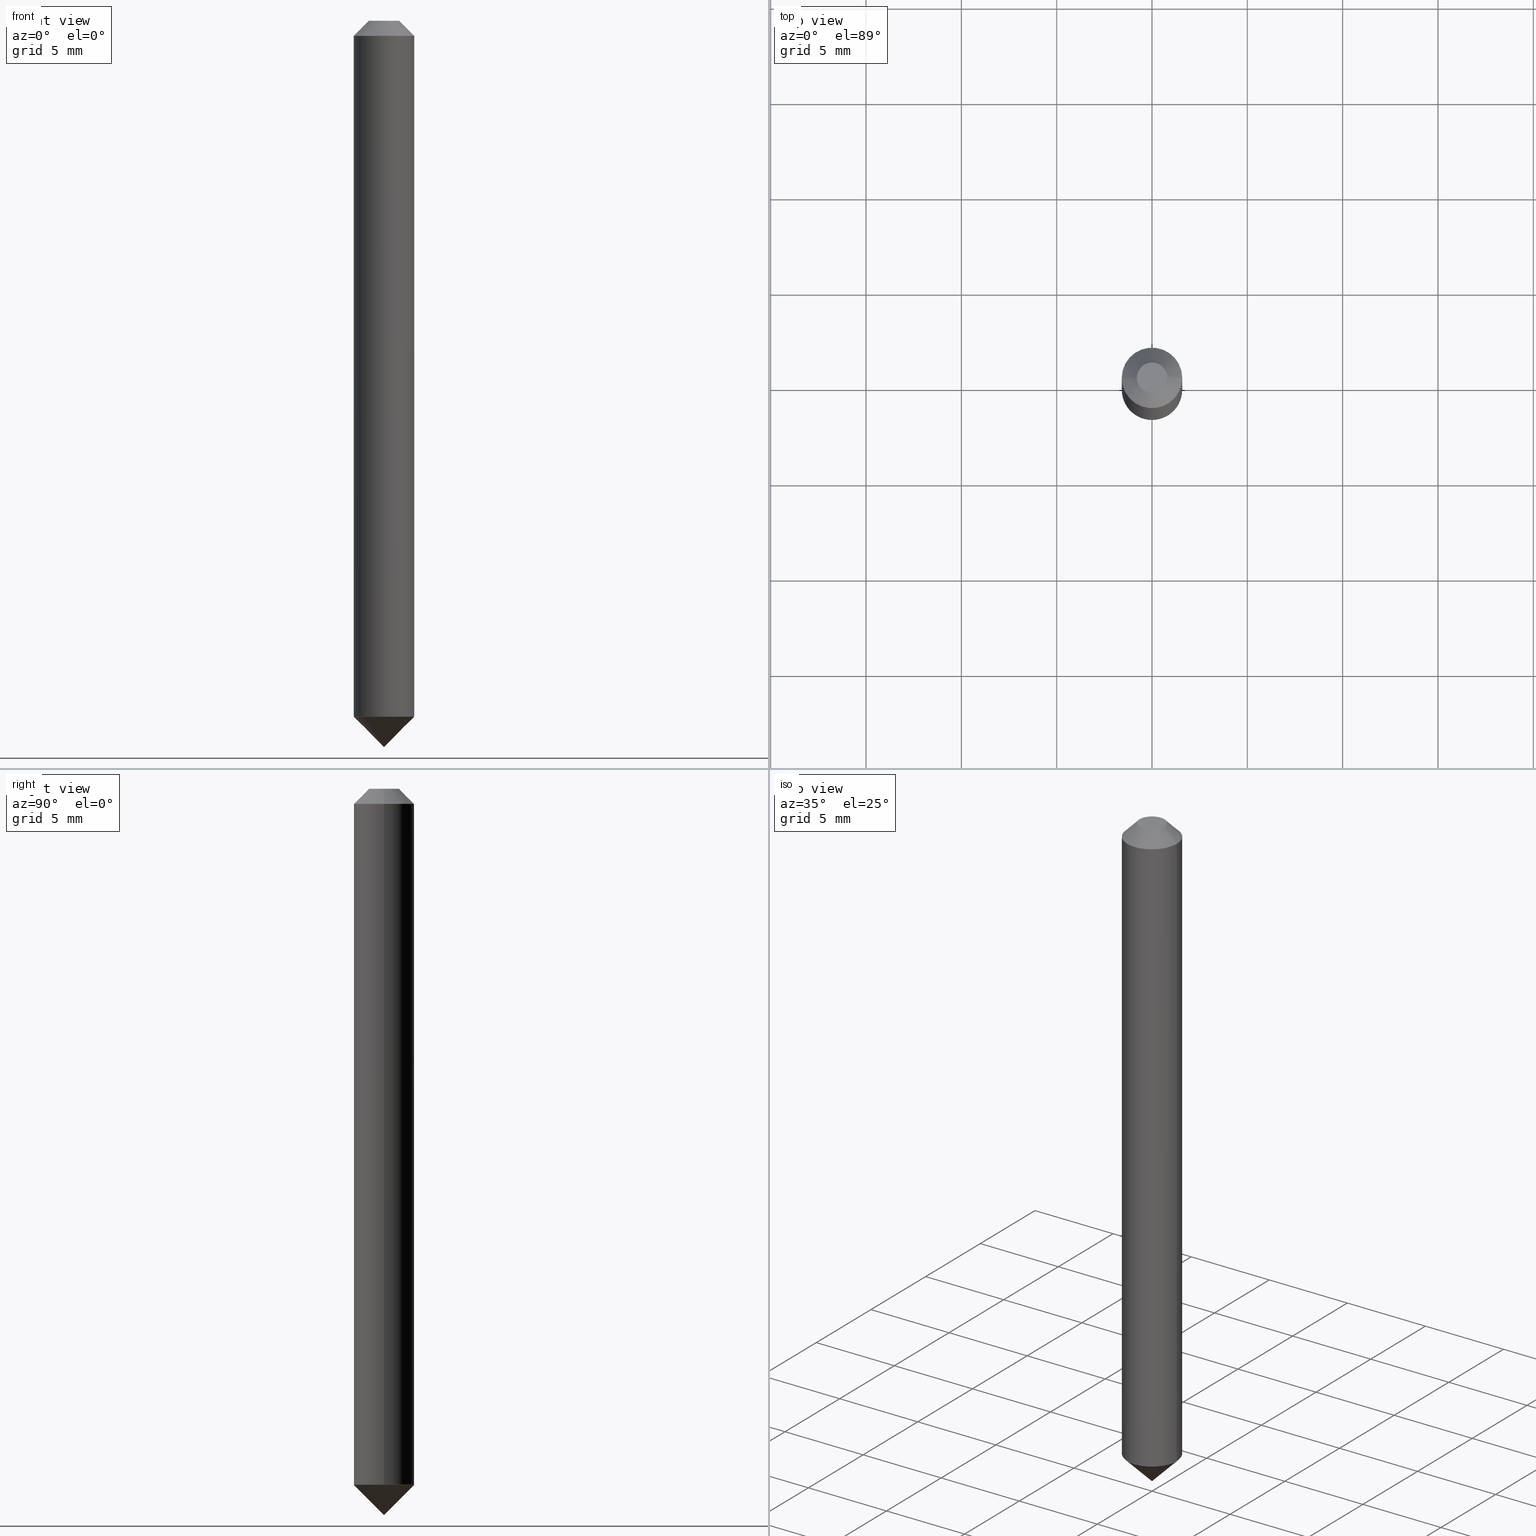
[diagram: canonical four-view strip — front | top / right | iso, engineering-drawing reading convention]
A machine part, canonical four-view strip (front | top / right | iso — engineering-drawing reading convention). The complete STEP part file that produces these views, byte-faithful:
ISO-10303-21;
HEADER;
FILE_DESCRIPTION (( 'STEP AP203' ),
    '1' );
FILE_NAME ('74201.STEP',
    '2024-03-04T15:01:00',
    ( '' ),
    ( '' ),
    'SwSTEP 2.0',
    'SolidWorks 2023',
    '' );
FILE_SCHEMA (( 'CONFIG_CONTROL_DESIGN' ));
ENDSEC;

DATA;
#1 = FACE_OUTER_BOUND ( 'NONE', #127, .T. ) ;
#2 = CARTESIAN_POINT ( 'NONE',  ( 0.06250000000000001388, -5.377153426326275743E-16, -0.03120000000000019286 ) ) ;
#3 = VECTOR ( 'NONE', #85, 39.37007874015748143 ) ;
#4 = DIRECTION ( 'NONE',  ( -6.982962677686266711E-15, -1.000000000000000000, 0.000000000000000000 ) ) ;
#5 = LINE ( 'NONE', #306, #32 ) ;
#6 = FACE_OUTER_BOUND ( 'NONE', #270, .T. ) ;
#7 = ADVANCED_FACE ( 'NONE', ( #224 ), #62, .T. ) ;
#8 = ORIENTED_EDGE ( 'NONE', *, *, #336, .T. ) ;
#9 = DIRECTION ( 'NONE',  ( 1.000000000000000000, -6.982962677686266711E-15, 4.876176775795935793E-29 ) ) ;
#10 = ORIENTED_EDGE ( 'NONE', *, *, #82, .T. ) ;
#11 = PERSON_AND_ORGANIZATION ( #44, #268 ) ;
#12 = VECTOR ( 'NONE', #34, 39.37007874015748143 ) ;
#13 = CONICAL_SURFACE ( 'NONE', #329, 0.06200000000000018691, 0.7853981633973118326 ) ;
#14 = VERTEX_POINT ( 'NONE', #349 ) ;
#15 = VERTEX_POINT ( 'NONE', #323 ) ;
#16 =( NAMED_UNIT ( * ) SI_UNIT ( $, .STERADIAN. ) SOLID_ANGLE_UNIT ( ) );
#17 = EDGE_CURVE ( 'NONE', #301, #253, #116, .T. ) ;
#18 = APPROVAL ( #126, 'UNSPECIFIED' ) ;
#19 = DIRECTION ( 'NONE',  ( 2.438088387897960049E-29, -3.491481338843145188E-15, -1.000000000000000000 ) ) ;
#20 = CC_DESIGN_PERSON_AND_ORGANIZATION_ASSIGNMENT ( #388, #385, ( #243 ) ) ;
#21 = ORIENTED_EDGE ( 'NONE', *, *, #315, .T. ) ;
#22 = AXIS2_PLACEMENT_3D ( 'NONE', #162, #361, #372 ) ;
#23 = CARTESIAN_POINT ( 'NONE',  ( -4.253508758618010942E-16, -0.06200000000000520373, -1.436999999999999833 ) ) ;
#24 = ORIENTED_EDGE ( 'NONE', *, *, #153, .T. ) ;
#25 = DIRECTION ( 'NONE',  ( -1.000000000000000000, 6.982962677686265922E-15, -4.876176775795935793E-29 ) ) ;
#26 = APPLICATION_CONTEXT ( 'configuration controlled 3d designs of mechanical parts and assemblies' ) ;
#27 = CC_DESIGN_PERSON_AND_ORGANIZATION_ASSIGNMENT ( #138, #257, ( #125 ) ) ;
#28 = CIRCLE ( 'NONE', #168, 0.06200000000000031875 ) ;
#29 = CC_DESIGN_SECURITY_CLASSIFICATION ( #243, ( #227 ) ) ;
#30 = COORDINATED_UNIVERSAL_TIME_OFFSET ( 5, 0, .BEHIND. ) ;
#31 = ORIENTED_EDGE ( 'NONE', *, *, #145, .F. ) ;
#32 = VECTOR ( 'NONE', #248, 39.37007874015748143 ) ;
#33 = DIRECTION ( 'NONE',  ( -2.445468806185136597E-29, 3.491481338843145583E-15, 1.000000000000000000 ) ) ;
#34 = DIRECTION ( 'NONE',  ( 0.7071067811867045583, -2.468850131083901441E-15, 0.7071067811863904762 ) ) ;
#35 = DIRECTION ( 'NONE',  ( 1.000000000000000000, -6.982962677686266711E-15, 4.876176775795935793E-29 ) ) ;
#36 = CARTESIAN_POINT ( 'NONE',  ( 1.871772216193329603E-46, -2.672394653685609529E-32, -7.654042494670960626E-18 ) ) ;
#37 = ADVANCED_FACE ( 'NONE', ( #202 ), #40, .T. ) ;
#38 = CARTESIAN_POINT ( 'NONE',  ( 4.440892098500995940E-16, 0.06249999999999523298, -1.437500000000000000 ) ) ;
#39 = ORIENTED_EDGE ( 'NONE', *, *, #247, .F. ) ;
#40 = CONICAL_SURFACE ( 'NONE', #178, 0.06250000000000022204, 0.7853981633974026488 ) ;
#41 = FACE_OUTER_BOUND ( 'NONE', #106, .T. ) ;
#42 = DIRECTION ( 'NONE',  ( 1.000000000000000000, -6.982962677686259611E-15, 0.000000000000000000 ) ) ;
#43 = DIRECTION ( 'NONE',  ( 0.7071067811865454633, -7.319954787623248157E-15, -0.7071067811865495711 ) ) ;
#44 = PERSON ( 'UNSPECIFIED', 'UNSPECIFIED', 'UNSPECIFIED', ('UNSPECIFIED'), ('UNSPECIFIED'), ('UNSPECIFIED') ) ;
#45 = ORIENTED_EDGE ( 'NONE', *, *, #93, .F. ) ;
#46 = CALENDAR_DATE ( 2024, 4, 3 ) ;
#47 = CARTESIAN_POINT ( 'NONE',  ( 3.516749098782405475E-29, -5.017017173680317883E-15, -1.437500000000000000 ) ) ;
#48 = DIRECTION ( 'NONE',  ( 6.982962677686265922E-15, 1.000000000000000000, 0.000000000000000000 ) ) ;
#49 = AXIS2_PLACEMENT_3D ( 'NONE', #318, #121, #271 ) ;
#50 = APPROVAL_ROLE ( '' ) ;
#51 = CC_DESIGN_APPROVAL ( #319, ( #227 ) ) ;
#52 = ORIENTED_EDGE ( 'NONE', *, *, #356, .F. ) ;
#53 = LINE ( 'NONE', #177, #205 ) ;
#54 = PRODUCT_RELATED_PRODUCT_CATEGORY ( 'detail', '', ( #125 ) ) ;
#55 = LINE ( 'NONE', #23, #316 ) ;
#56 = ORIENTED_EDGE ( 'NONE', *, *, #304, .F. ) ;
#57 = MECHANICAL_CONTEXT ( 'NONE', #26, 'mechanical' ) ;
#58 = LOCAL_TIME ( 10, 1, 0.000000000000000000, #198 ) ;
#59 = PRODUCT_DEFINITION_SHAPE ( 'NONE', 'NONE',  #380 ) ;
#60 = ORIENTED_EDGE ( 'NONE', *, *, #145, .T. ) ;
#61 = DIRECTION ( 'NONE',  ( 1.000000000000000000, -6.982962677686259611E-15, 0.000000000000000000 ) ) ;
#62 = CONICAL_SURFACE ( 'NONE', #324, 0.06250000000000016653, 0.7853981633976704346 ) ;
#63 = DIRECTION ( 'NONE',  ( 5.220848588728949475E-29, 4.830204745668128317E-16, -1.000000000000000000 ) ) ;
#64 = DIRECTION ( 'NONE',  ( -1.000000000000000000, 6.982962677686265922E-15, 0.000000000000000000 ) ) ;
#65 = VERTEX_POINT ( 'NONE', #373 ) ;
#66 = EDGE_CURVE ( 'NONE', #231, #301, #161, .T. ) ;
#67 = CARTESIAN_POINT ( 'NONE',  ( -0.03130000000000000143, 2.730338406975325259E-16, -7.654042494672678556E-18 ) ) ;
#68 = CARTESIAN_POINT ( 'NONE',  ( 3.512915940084948255E-29, -5.015512943248178546E-15, -1.436499999999999888 ) ) ;
#69 = FACE_OUTER_BOUND ( 'NONE', #197, .T. ) ;
#70 = ADVANCED_FACE ( 'NONE', ( #286 ), #389, .F. ) ;
#71 = CONICAL_SURFACE ( 'NONE', #297, 0.06250000000000001388, 0.7853981633974453924 ) ;
#72 = FACE_OUTER_BOUND ( 'NONE', #331, .T. ) ;
#73 = DATE_AND_TIME ( #228, #184 ) ;
#74 = DIRECTION ( 'NONE',  ( -2.445468806185136597E-29, 3.491481338843145583E-15, 1.000000000000000000 ) ) ;
#75 = ADVANCED_FACE ( 'NONE', ( #69 ), #71, .T. ) ;
#76 = DATE_AND_TIME ( #107, #317 ) ;
#77 = DIRECTION ( 'NONE',  ( 6.982962677686266711E-15, 1.000000000000000000, 0.000000000000000000 ) ) ;
#78 = ORIENTED_EDGE ( 'NONE', *, *, #379, .F. ) ;
#79 = DIRECTION ( 'NONE',  ( 5.220848588728949475E-29, 4.830204745668128317E-16, -1.000000000000000000 ) ) ;
#80 = CC_DESIGN_DATE_AND_TIME_ASSIGNMENT ( #166, #291, ( #380 ) ) ;
#81 = ORIENTED_EDGE ( 'NONE', *, *, #304, .T. ) ;
#82 = EDGE_CURVE ( 'NONE', #154, #65, #246, .T. ) ;
#83 = AXIS2_PLACEMENT_3D ( 'NONE', #256, #305, #64 ) ;
#84 = ORIENTED_EDGE ( 'NONE', *, *, #66, .F. ) ;
#85 = DIRECTION ( 'NONE',  ( -2.445468806185136877E-29, 3.491481338843145188E-15, 1.000000000000000000 ) ) ;
#86 = AXIS2_PLACEMENT_3D ( 'NONE', #339, #310, #35 ) ;
#87 = DATE_AND_TIME ( #299, #144 ) ;
#88 = CARTESIAN_POINT ( 'NONE',  ( 4.440892098500992982E-16, 0.06249999999999519829, -1.437500000000000000 ) ) ;
#89 = CLOSED_SHELL ( 'NONE', ( #151, #129, #7, #287, #244, #179, #75, #70 ) ) ;
#90 = DATE_TIME_ROLE ( 'classification_date' ) ;
#91 = CARTESIAN_POINT ( 'NONE',  ( 4.329436860165849006E-16, 0.06199999999999516315, -1.436999999999999833 ) ) ;
#92 = APPROVAL_PERSON_ORGANIZATION ( #312, #220, #338 ) ;
#93 = EDGE_CURVE ( 'NONE', #102, #253, #5, .T. ) ;
#94 = DIRECTION ( 'NONE',  ( -2.445468806185136597E-29, 3.491481338843145583E-15, 1.000000000000000000 ) ) ;
#95 = CARTESIAN_POINT ( 'NONE',  ( 0.06250000000000016653, -5.451948110603571004E-15, -1.436499999999999888 ) ) ;
#96 = CARTESIAN_POINT ( 'NONE',  ( 3.512915940084948255E-29, -5.015512943248178546E-15, -1.436499999999999888 ) ) ;
#97 = DIRECTION ( 'NONE',  ( 1.000000000000000000, -6.982962677686265133E-15, 0.000000000000000000 ) ) ;
#98 = EDGE_CURVE ( 'NONE', #266, #15, #263, .T. ) ;
#99 = DIRECTION ( 'NONE',  ( -1.000000000000000000, 6.982962677686265922E-15, -4.876176775795935793E-29 ) ) ;
#100 = CARTESIAN_POINT ( 'NONE',  ( -0.06250000000000008327, 4.440892098500632078E-16, -3.074334431409319967E-30 ) ) ;
#101 = CARTESIAN_POINT ( 'NONE',  ( 3.514138674488039375E-29, -5.017258683917600838E-15, -1.436999999999999833 ) ) ;
#102 = VERTEX_POINT ( 'NONE', #91 ) ;
#103 = APPROVAL_STATUS ( 'not_yet_approved' ) ;
#104 = DIRECTION ( 'NONE',  ( -5.220848588728949475E-29, -4.830204745668128317E-16, 1.000000000000000000 ) ) ;
#105 = AXIS2_PLACEMENT_3D ( 'NONE', #186, #33, #160 ) ;
#106 = EDGE_LOOP ( 'NONE', ( #369, #288 ) ) ;
#107 = CALENDAR_DATE ( 2024, 4, 3 ) ;
#108 = ORIENTED_EDGE ( 'NONE', *, *, #325, .F. ) ;
#109 = CC_DESIGN_PERSON_AND_ORGANIZATION_ASSIGNMENT ( #232, #311, ( #380 ) ) ;
#110 = DIRECTION ( 'NONE',  ( -6.982962677686266711E-15, -1.000000000000000000, 0.000000000000000000 ) ) ;
#111 = ORIENTED_EDGE ( 'NONE', *, *, #356, .T. ) ;
#112 = AXIS2_PLACEMENT_3D ( 'NONE', #148, #124, #242 ) ;
#113 = CIRCLE ( 'NONE', #169, 0.03130000000000000143 ) ;
#114 = DIRECTION ( 'NONE',  ( 0.000000000000000000, 0.000000000000000000, 1.000000000000000000 ) ) ;
#115 = DIRECTION ( 'NONE',  ( 5.220848588728949475E-29, 4.830204745668128317E-16, -1.000000000000000000 ) ) ;
#116 = CIRCLE ( 'NONE', #213, 0.06250000000000022204 ) ;
#117 = CARTESIAN_POINT ( 'NONE',  ( 3.514138674488039375E-29, -5.017258683917598472E-15, -1.436999999999999389 ) ) ;
#118 = AXIS2_PLACEMENT_3D ( 'NONE', #134, #249, #334 ) ;
#119 = PLANE ( 'NONE',  #384 ) ;
#120 = EDGE_LOOP ( 'NONE', ( #274, #111, #192, #156 ) ) ;
#121 = DIRECTION ( 'NONE',  ( -2.445468806185136597E-29, 3.491481338843145583E-15, 1.000000000000000000 ) ) ;
#122 = APPROVAL_ROLE ( '' ) ;
#123 = CC_DESIGN_PERSON_AND_ORGANIZATION_ASSIGNMENT ( #381, #241, ( #227 ) ) ;
#124 = DIRECTION ( 'NONE',  ( 5.220848588728949475E-29, 4.830204745668128317E-16, -1.000000000000000000 ) ) ;
#125 = PRODUCT ( '74201', '74201', '', ( #57 ) ) ;
#126 = APPROVAL_STATUS ( 'not_yet_approved' ) ;
#127 = EDGE_LOOP ( 'NONE', ( #238, #21, #215, #207 ) ) ;
#128 = VERTEX_POINT ( 'NONE', #303 ) ;
#129 = ADVANCED_FACE ( 'NONE', ( #335 ), #229, .T. ) ;
#130 = DIRECTION ( 'NONE',  ( 2.438088387897960049E-29, -3.491481338843145188E-15, -1.000000000000000000 ) ) ;
#131 = CARTESIAN_POINT ( 'NONE',  ( -0.06250000000000001388, 3.275009495834849163E-16, -0.03120000000000019286 ) ) ;
#132 = EDGE_LOOP ( 'NONE', ( #149, #60 ) ) ;
#133 = ORIENTED_EDGE ( 'NONE', *, *, #347, .T. ) ;
#134 = CARTESIAN_POINT ( 'NONE',  ( 3.512915940084948255E-29, -5.015512943248178546E-15, -1.436499999999999888 ) ) ;
#135 = ADVANCED_FACE ( 'NONE', ( #1 ), #13, .T. ) ;
#136 = ORIENTED_EDGE ( 'NONE', *, *, #98, .F. ) ;
#137 = ORIENTED_EDGE ( 'NONE', *, *, #17, .T. ) ;
#138 = PERSON_AND_ORGANIZATION ( #44, #268 ) ;
#139 = AXIS2_PLACEMENT_3D ( 'NONE', #96, #94, #359 ) ;
#140 = ORIENTED_EDGE ( 'NONE', *, *, #153, .F. ) ;
#141 = DIRECTION ( 'NONE',  ( -5.220848588728949475E-29, -4.830204745668128317E-16, 1.000000000000000000 ) ) ;
#142 = EDGE_CURVE ( 'NONE', #15, #266, #185, .T. ) ;
#143 = ORIENTED_EDGE ( 'NONE', *, *, #98, .T. ) ;
#144 = LOCAL_TIME ( 10, 1, 0.000000000000000000, #30 ) ;
#145 = EDGE_CURVE ( 'NONE', #14, #285, #278, .T. ) ;
#146 = CIRCLE ( 'NONE', #258, 0.06200000000000018691 ) ;
#147 = EDGE_LOOP ( 'NONE', ( #108, #386, #137 ) ) ;
#148 = CARTESIAN_POINT ( 'NONE',  ( 3.514138674488039375E-29, -5.017258683917600838E-15, -1.436999999999999833 ) ) ;
#149 = ORIENTED_EDGE ( 'NONE', *, *, #383, .T. ) ;
#150 = DIRECTION ( 'NONE',  ( 1.000000000000000000, -6.982962677686265922E-15, 0.000000000000000000 ) ) ;
#151 = ADVANCED_FACE ( 'NONE', ( #6 ), #259, .T. ) ;
#152 = COORDINATED_UNIVERSAL_TIME_OFFSET ( 5, 0, .BEHIND. ) ;
#153 = EDGE_CURVE ( 'NONE', #14, #182, #158, .T. ) ;
#154 = VERTEX_POINT ( 'NONE', #365 ) ;
#155 = APPROVAL_PERSON_ORGANIZATION ( #11, #319, #50 ) ;
#156 = ORIENTED_EDGE ( 'NONE', *, *, #176, .F. ) ;
#157 = VECTOR ( 'NONE', #167, 39.37007874015748143 ) ;
#158 = LINE ( 'NONE', #2, #292 ) ;
#159 = DIRECTION ( 'NONE',  ( -2.445468806185136597E-29, 3.491481338843145583E-15, 1.000000000000000000 ) ) ;
#160 = DIRECTION ( 'NONE',  ( 1.000000000000000000, -6.982962677686266711E-15, 4.875266047494795291E-29 ) ) ;
#161 = LINE ( 'NONE', #187, #157 ) ;
#162 = CARTESIAN_POINT ( 'NONE',  ( 3.516749098782405475E-29, -5.017017173680317883E-15, -1.437500000000000000 ) ) ;
#163 = APPLICATION_PROTOCOL_DEFINITION ( 'international standard', 'config_control_design', 1994, #370 ) ;
#164 = CYLINDRICAL_SURFACE ( 'NONE', #276, 0.06250000000000008327 ) ;
#165 = EDGE_LOOP ( 'NONE', ( #133, #8, #39, #45 ) ) ;
#166 = DATE_AND_TIME ( #46, #58 ) ;
#167 = DIRECTION ( 'NONE',  ( -4.937700262164342149E-15, -0.7071067811865155983, 0.7071067811865795472 ) ) ;
#168 = AXIS2_PLACEMENT_3D ( 'NONE', #189, #337, #97 ) ;
#169 = AXIS2_PLACEMENT_3D ( 'NONE', #36, #367, #360 ) ;
#170 = COORDINATED_UNIVERSAL_TIME_OFFSET ( 5, 0, .BEHIND. ) ;
#171 = EDGE_CURVE ( 'NONE', #65, #154, #28, .T. ) ;
#172 = CARTESIAN_POINT ( 'NONE',  ( 0.000000000000000000, 0.000000000000000000, 0.000000000000000000 ) ) ;
#173 = FACE_OUTER_BOUND ( 'NONE', #333, .T. ) ;
#174 = DIRECTION ( 'NONE',  ( -4.851104656540281910E-15, -0.7071067811864506503, -0.7071067811866443842 ) ) ;
#175 = EDGE_LOOP ( 'NONE', ( #314, #204 ) ) ;
#176 = EDGE_CURVE ( 'NONE', #65, #15, #252, .T. ) ;
#177 = CARTESIAN_POINT ( 'NONE',  ( -0.06250000000000016653, -4.571423733398114352E-15, -1.436499999999999888 ) ) ;
#178 = AXIS2_PLACEMENT_3D ( 'NONE', #47, #104, #4 ) ;
#179 = ADVANCED_FACE ( 'NONE', ( #72 ), #164, .T. ) ;
#180 = DIRECTION ( 'NONE',  ( 5.024295867787813110E-15, 0.7071067811865149322, 0.7071067811865802133 ) ) ;
#181 = CIRCLE ( 'NONE', #237, 0.06250000000000001388 ) ;
#182 = VERTEX_POINT ( 'NONE', #368 ) ;
#183 = CONICAL_SURFACE ( 'NONE', #273, 0.06200000000000018691, 0.7853981633973118326 ) ;
#184 = LOCAL_TIME ( 10, 1, 0.000000000000000000, #170 ) ;
#185 = CIRCLE ( 'NONE', #194, 0.06250000000000016653 ) ;
#186 = CARTESIAN_POINT ( 'NONE',  ( 1.871772216193329603E-46, -2.672394653685609529E-32, -7.654042494670960626E-18 ) ) ;
#187 = CARTESIAN_POINT ( 'NONE',  ( -4.364351673553579949E-16, -0.06250000000000524580, -1.437500000000000000 ) ) ;
#188 = CC_DESIGN_PERSON_AND_ORGANIZATION_ASSIGNMENT ( #298, #326, ( #227 ) ) ;
#189 = CARTESIAN_POINT ( 'NONE',  ( 3.514138674488039375E-29, -5.017258683917598472E-15, -1.436999999999999389 ) ) ;
#190 = ORIENTED_EDGE ( 'NONE', *, *, #176, .T. ) ;
#191 = CARTESIAN_POINT ( 'NONE',  ( 7.629862675297673947E-31, -1.089342177719068147E-16, -0.03120000000000019286 ) ) ;
#192 = ORIENTED_EDGE ( 'NONE', *, *, #142, .F. ) ;
#193 = DIRECTION ( 'NONE',  ( 1.000000000000000000, -6.982962677686265133E-15, 0.000000000000000000 ) ) ;
#194 = AXIS2_PLACEMENT_3D ( 'NONE', #328, #366, #61 ) ;
#195 = ADVANCED_FACE ( 'NONE', ( #279 ), #390, .T. ) ;
#196 =( LENGTH_UNIT ( ) NAMED_UNIT ( * ) SI_UNIT ( $, .METRE. ) );
#197 = EDGE_LOOP ( 'NONE', ( #140, #375, #341, #358 ) ) ;
#198 = COORDINATED_UNIVERSAL_TIME_OFFSET ( 5, 0, .BEHIND. ) ;
#199 = DIRECTION ( 'NONE',  ( 5.220848588728949475E-29, 4.830204745668128317E-16, -1.000000000000000000 ) ) ;
#200 = CARTESIAN_POINT ( 'NONE',  ( 3.514138674488039375E-29, -5.017258683917600838E-15, -1.436999999999999833 ) ) ;
#201 = APPROVAL_DATE_TIME ( #76, #319 ) ;
#202 = FACE_OUTER_BOUND ( 'NONE', #147, .T. ) ;
#203 =( GEOMETRIC_REPRESENTATION_CONTEXT ( 3 ) GLOBAL_UNCERTAINTY_ASSIGNED_CONTEXT ( ( #260 ) ) GLOBAL_UNIT_ASSIGNED_CONTEXT ( ( #210, #265, #16 ) ) REPRESENTATION_CONTEXT ( 'NONE', 'WORKASPACE' ) );
#204 = ORIENTED_EDGE ( 'NONE', *, *, #315, .F. ) ;
#205 = VECTOR ( 'NONE', #235, 39.37007874015748143 ) ;
#206 = LOCAL_TIME ( 10, 1, 0.000000000000000000, #152 ) ;
#207 = ORIENTED_EDGE ( 'NONE', *, *, #17, .F. ) ;
#208 = LINE ( 'NONE', #88, #320 ) ;
#209 = DIRECTION ( 'NONE',  ( -2.445468806185136597E-29, 3.491481338843145583E-15, 1.000000000000000000 ) ) ;
#210 =( CONVERSION_BASED_UNIT ( 'INCH', #340 ) LENGTH_UNIT ( ) NAMED_UNIT ( #352 ) );
#211 = CARTESIAN_POINT ( 'NONE',  ( -4.364351673553578470E-16, -0.06250000000000520417, -1.437500000000000000 ) ) ;
#212 = SECURITY_CLASSIFICATION_LEVEL ( 'unclassified' ) ;
#213 = AXIS2_PLACEMENT_3D ( 'NONE', #345, #79, #77 ) ;
#214 = PERSON_AND_ORGANIZATION ( #44, #268 ) ;
#215 = ORIENTED_EDGE ( 'NONE', *, *, #93, .T. ) ;
#216 = DIRECTION ( 'NONE',  ( 6.982962677686265922E-15, 1.000000000000000000, 0.000000000000000000 ) ) ;
#217 = CIRCLE ( 'NONE', #22, 0.06250000000000022204 ) ;
#218 = CARTESIAN_POINT ( 'NONE',  ( -0.06250000000000016653, -4.571423733398114352E-15, -1.436499999999999888 ) ) ;
#219 = ORIENTED_EDGE ( 'NONE', *, *, #382, .T. ) ;
#220 = APPROVAL ( #103, 'UNSPECIFIED' ) ;
#221 = CARTESIAN_POINT ( 'NONE',  ( 7.935554180731526392E-29, 1.314459972365520781E-15, -1.436999999999999833 ) ) ;
#222 = DIRECTION ( 'NONE',  ( -0.7071067811865454633, 2.468850131082235367E-15, -0.7071067811865495711 ) ) ;
#223 = DIRECTION ( 'NONE',  ( -6.982962677686265922E-15, -1.000000000000000000, -4.830204745668128317E-16 ) ) ;
#224 = FACE_OUTER_BOUND ( 'NONE', #120, .T. ) ;
#225 = DIRECTION ( 'NONE',  ( -1.000000000000000000, 6.982962677686265922E-15, 0.000000000000000000 ) ) ;
#226 = CONICAL_SURFACE ( 'NONE', #371, 0.06250000000000022204, 0.7853981633974026488 ) ;
#227 = PRODUCT_DEFINITION_FORMATION_WITH_SPECIFIED_SOURCE ( 'ANY', '', #125, .NOT_KNOWN. ) ;
#228 = CALENDAR_DATE ( 2024, 4, 3 ) ;
#229 = CYLINDRICAL_SURFACE ( 'NONE', #86, 0.06250000000000008327 ) ;
#230 = VECTOR ( 'NONE', #307, 39.37007874015748143 ) ;
#231 = VERTEX_POINT ( 'NONE', #281 ) ;
#232 = PERSON_AND_ORGANIZATION ( #44, #268 ) ;
#233 = CARTESIAN_POINT ( 'NONE',  ( -0.06250000000000001388, -2.118134370659977963E-15, -0.03120000000000019286 ) ) ;
#234 = ORIENTED_EDGE ( 'NONE', *, *, #142, .T. ) ;
#235 = DIRECTION ( 'NONE',  ( -0.7071067811867045583, 7.493145998870922140E-15, 0.7071067811863904762 ) ) ;
#236 = CARTESIAN_POINT ( 'NONE',  ( 0.06250000000000008327, -4.364351673553922611E-16, 3.047610484872464074E-30 ) ) ;
#237 = AXIS2_PLACEMENT_3D ( 'NONE', #354, #209, #150 ) ;
#238 = ORIENTED_EDGE ( 'NONE', *, *, #336, .F. ) ;
#239 = SHAPE_DEFINITION_REPRESENTATION ( #59, #296 ) ;
#240 = LINE ( 'NONE', #236, #3 ) ;
#241 = PERSON_AND_ORGANIZATION_ROLE ( 'design_supplier' ) ;
#242 = DIRECTION ( 'NONE',  ( 6.982962677686265922E-15, 1.000000000000000000, 0.000000000000000000 ) ) ;
#243 = SECURITY_CLASSIFICATION ( '', '', #212 ) ;
#244 = ADVANCED_FACE ( 'NONE', ( #308 ), #250, .T. ) ;
#245 = MANIFOLD_SOLID_BREP ( 'Body-Move/Copy2[1]', #378 ) ;
#246 = CIRCLE ( 'NONE', #387, 0.06200000000000031875 ) ;
#247 = EDGE_CURVE ( 'NONE', #253, #301, #217, .T. ) ;
#248 = DIRECTION ( 'NONE',  ( 4.937700262163893288E-15, 0.7071067811864513164, -0.7071067811866437181 ) ) ;
#249 = DIRECTION ( 'NONE',  ( -2.445468806185136597E-29, 3.491481338843145583E-15, 1.000000000000000000 ) ) ;
#250 = CONICAL_SURFACE ( 'NONE', #118, 0.06250000000000016653, 0.7853981633976704346 ) ;
#251 = CARTESIAN_POINT ( 'NONE',  ( 3.514138674488039375E-29, -5.017258683917600838E-15, -1.436999999999999833 ) ) ;
#252 = LINE ( 'NONE', #95, #12 ) ;
#253 = VERTEX_POINT ( 'NONE', #38 ) ;
#254 = CARTESIAN_POINT ( 'NONE',  ( 9.358861080966648015E-47, -1.336197326842804765E-32, -3.827021247335480313E-18 ) ) ;
#255 = LINE ( 'NONE', #100, #230 ) ;
#256 = CARTESIAN_POINT ( 'NONE',  ( 7.629862675297673947E-31, -1.089342177719068147E-16, -0.03120000000000019286 ) ) ;
#257 = PERSON_AND_ORGANIZATION_ROLE ( 'design_owner' ) ;
#258 = AXIS2_PLACEMENT_3D ( 'NONE', #200, #115, #48 ) ;
#259 = CONICAL_SURFACE ( 'NONE', #83, 0.06250000000000001388, 0.7853981633974453924 ) ;
#260 = UNCERTAINTY_MEASURE_WITH_UNIT (LENGTH_MEASURE( 1.000000000000000082E-05 ), #210, 'distance_accuracy_value', 'NONE');
#261 = APPROVAL_STATUS ( 'not_yet_approved' ) ;
#262 = AXIS2_PLACEMENT_3D ( 'NONE', #254, #130, #99 ) ;
#263 = CIRCLE ( 'NONE', #139, 0.06250000000000016653 ) ;
#264 = DESIGN_CONTEXT ( 'detailed design', #370, 'design' ) ;
#265 =( NAMED_UNIT ( * ) PLANE_ANGLE_UNIT ( ) SI_UNIT ( $, .RADIAN. ) );
#266 = VERTEX_POINT ( 'NONE', #218 ) ;
#267 = APPLICATION_PROTOCOL_DEFINITION ( 'international standard', 'config_control_design', 1994, #26 ) ;
#268 = ORGANIZATION ( 'UNSPECIFIED', 'UNSPECIFIED', '' ) ;
#269 = ADVANCED_FACE ( 'NONE', ( #330 ), #183, .T. ) ;
#270 = EDGE_LOOP ( 'NONE', ( #31, #24, #302, #78 ) ) ;
#271 = DIRECTION ( 'NONE',  ( 1.000000000000000000, -6.982962677686265922E-15, 0.000000000000000000 ) ) ;
#272 = APPROVAL_DATE_TIME ( #321, #18 ) ;
#273 = AXIS2_PLACEMENT_3D ( 'NONE', #101, #63, #284 ) ;
#274 = ORIENTED_EDGE ( 'NONE', *, *, #171, .T. ) ;
#275 = ORIENTED_EDGE ( 'NONE', *, *, #295, .F. ) ;
#276 = AXIS2_PLACEMENT_3D ( 'NONE', #289, #159, #9 ) ;
#277 = ORIENTED_EDGE ( 'NONE', *, *, #325, .T. ) ;
#278 = CIRCLE ( 'NONE', #105, 0.03130000000000000143 ) ;
#279 = FACE_OUTER_BOUND ( 'NONE', #175, .T. ) ;
#280 = CARTESIAN_POINT ( 'NONE',  ( 3.514138674488039375E-29, -5.017258683917598472E-15, -1.436999999999999389 ) ) ;
#281 = CARTESIAN_POINT ( 'NONE',  ( 7.831272883093423091E-29, 7.245307118502196420E-16, -1.500000000000000222 ) ) ;
#282 = CIRCLE ( 'NONE', #112, 0.06200000000000018691 ) ;
#283 = APPROVAL_PERSON_ORGANIZATION ( #214, #18, #122 ) ;
#284 = DIRECTION ( 'NONE',  ( 6.982962677686265922E-15, 1.000000000000000000, 0.000000000000000000 ) ) ;
#285 = VERTEX_POINT ( 'NONE', #67 ) ;
#286 = FACE_OUTER_BOUND ( 'NONE', #132, .T. ) ;
#287 = ADVANCED_FACE ( 'NONE', ( #41 ), #119, .T. ) ;
#288 = ORIENTED_EDGE ( 'NONE', *, *, #82, .F. ) ;
#289 = CARTESIAN_POINT ( 'NONE',  ( 0.000000000000000000, 0.000000000000000000, 0.000000000000000000 ) ) ;
#290 = EDGE_CURVE ( 'NONE', #182, #353, #362, .T. ) ;
#291 = DATE_TIME_ROLE ( 'creation_date' ) ;
#292 = VECTOR ( 'NONE', #43, 39.37007874015748143 ) ;
#293 = EDGE_LOOP ( 'NONE', ( #234, #219, #294, #56 ) ) ;
#294 = ORIENTED_EDGE ( 'NONE', *, *, #290, .F. ) ;
#295 = EDGE_CURVE ( 'NONE', #353, #182, #181, .T. ) ;
#296 = ADVANCED_BREP_SHAPE_REPRESENTATION ( '74201', ( #245, #376, #351 ), #203 ) ;
#297 = AXIS2_PLACEMENT_3D ( 'NONE', #191, #364, #225 ) ;
#298 = PERSON_AND_ORGANIZATION ( #44, #268 ) ;
#299 = CALENDAR_DATE ( 2024, 4, 3 ) ;
#300 = VECTOR ( 'NONE', #222, 39.37007874015748143 ) ;
#301 = VERTEX_POINT ( 'NONE', #211 ) ;
#302 = ORIENTED_EDGE ( 'NONE', *, *, #290, .T. ) ;
#303 = CARTESIAN_POINT ( 'NONE',  ( -4.270660003612439972E-16, -0.06200000000000520373, -1.436999999999999833 ) ) ;
#304 = EDGE_CURVE ( 'NONE', #15, #182, #240, .T. ) ;
#305 = DIRECTION ( 'NONE',  ( 2.445468806185136597E-29, -3.491481338843145583E-15, -1.000000000000000000 ) ) ;
#306 = CARTESIAN_POINT ( 'NONE',  ( 4.329436860165849006E-16, 0.06199999999999516315, -1.436999999999999833 ) ) ;
#307 = DIRECTION ( 'NONE',  ( -2.445468806185136877E-29, 3.491481338843145188E-15, 1.000000000000000000 ) ) ;
#308 = FACE_OUTER_BOUND ( 'NONE', #327, .T. ) ;
#309 = DIRECTION ( 'NONE',  ( -2.445468806185136597E-29, 3.491481338843145583E-15, 1.000000000000000000 ) ) ;
#310 = DIRECTION ( 'NONE',  ( -2.445468806185136597E-29, 3.491481338843145583E-15, 1.000000000000000000 ) ) ;
#311 = PERSON_AND_ORGANIZATION_ROLE ( 'creator' ) ;
#312 = PERSON_AND_ORGANIZATION ( #44, #268 ) ;
#313 = CC_DESIGN_APPROVAL ( #220, ( #380 ) ) ;
#314 = ORIENTED_EDGE ( 'NONE', *, *, #347, .F. ) ;
#315 = EDGE_CURVE ( 'NONE', #128, #102, #282, .T. ) ;
#316 = VECTOR ( 'NONE', #174, 39.37007874015748143 ) ;
#317 = LOCAL_TIME ( 10, 1, 0.000000000000000000, #342 ) ;
#318 = CARTESIAN_POINT ( 'NONE',  ( 7.629862675297673947E-31, -1.089342177719068147E-16, -0.03120000000000019286 ) ) ;
#319 = APPROVAL ( #261, 'UNSPECIFIED' ) ;
#320 = VECTOR ( 'NONE', #180, 39.37007874015748143 ) ;
#321 = DATE_AND_TIME ( #357, #206 ) ;
#322 = CC_DESIGN_APPROVAL ( #18, ( #243 ) ) ;
#323 = CARTESIAN_POINT ( 'NONE',  ( 0.06250000000000016653, -5.451948110603571004E-15, -1.436499999999999888 ) ) ;
#324 = AXIS2_PLACEMENT_3D ( 'NONE', #68, #309, #42 ) ;
#325 = EDGE_CURVE ( 'NONE', #231, #253, #208, .T. ) ;
#326 = PERSON_AND_ORGANIZATION_ROLE ( 'creator' ) ;
#327 = EDGE_LOOP ( 'NONE', ( #52, #10, #190, #136 ) ) ;
#328 = CARTESIAN_POINT ( 'NONE',  ( 3.512915940084948255E-29, -5.015512943248178546E-15, -1.436499999999999888 ) ) ;
#329 = AXIS2_PLACEMENT_3D ( 'NONE', #251, #199, #216 ) ;
#330 = FACE_OUTER_BOUND ( 'NONE', #165, .T. ) ;
#331 = EDGE_LOOP ( 'NONE', ( #377, #143, #81, #275 ) ) ;
#332 = DIRECTION ( 'NONE',  ( -5.220848588728949475E-29, -4.830204745668128317E-16, 1.000000000000000000 ) ) ;
#333 = EDGE_LOOP ( 'NONE', ( #84, #277, #344 ) ) ;
#334 = DIRECTION ( 'NONE',  ( 1.000000000000000000, -6.982962677686259611E-15, 0.000000000000000000 ) ) ;
#335 = FACE_OUTER_BOUND ( 'NONE', #293, .T. ) ;
#336 = EDGE_CURVE ( 'NONE', #128, #301, #55, .T. ) ;
#337 = DIRECTION ( 'NONE',  ( -2.445468806185136597E-29, 3.491481338843145583E-15, 1.000000000000000000 ) ) ;
#338 = APPROVAL_ROLE ( '' ) ;
#339 = CARTESIAN_POINT ( 'NONE',  ( 0.000000000000000000, 0.000000000000000000, 0.000000000000000000 ) ) ;
#340 = LENGTH_MEASURE_WITH_UNIT ( LENGTH_MEASURE( 0.02539999999999999897 ), #196 );
#341 = ORIENTED_EDGE ( 'NONE', *, *, #379, .T. ) ;
#342 = COORDINATED_UNIVERSAL_TIME_OFFSET ( 5, 0, .BEHIND. ) ;
#343 = CARTESIAN_POINT ( 'NONE',  ( 3.516749098782405475E-29, -5.017017173680317883E-15, -1.437500000000000000 ) ) ;
#344 = ORIENTED_EDGE ( 'NONE', *, *, #247, .T. ) ;
#345 = CARTESIAN_POINT ( 'NONE',  ( 3.516749098782405475E-29, -5.017017173680317883E-15, -1.437500000000000000 ) ) ;
#346 = DIRECTION ( 'NONE',  ( 1.000000000000000000, 0.000000000000000000, 0.000000000000000000 ) ) ;
#347 = EDGE_CURVE ( 'NONE', #102, #128, #146, .T. ) ;
#348 = LINE ( 'NONE', #131, #300 ) ;
#349 = CARTESIAN_POINT ( 'NONE',  ( 0.03130000000000000143, -3.762244649814383124E-16, -7.654042494668882163E-18 ) ) ;
#350 = ADVANCED_FACE ( 'NONE', ( #173 ), #226, .T. ) ;
#351 = AXIS2_PLACEMENT_3D ( 'NONE', #172, #114, #346 ) ;
#352 = DIMENSIONAL_EXPONENTS ( 1.000000000000000000, 0.000000000000000000, 0.000000000000000000, 0.000000000000000000, 0.000000000000000000, 0.000000000000000000, 0.000000000000000000 ) ;
#353 = VERTEX_POINT ( 'NONE', #233 ) ;
#354 = CARTESIAN_POINT ( 'NONE',  ( 7.629862675297673947E-31, -1.089342177719068147E-16, -0.03120000000000019286 ) ) ;
#355 = CC_DESIGN_DATE_AND_TIME_ASSIGNMENT ( #87, #90, ( #243 ) ) ;
#356 = EDGE_CURVE ( 'NONE', #154, #266, #53, .T. ) ;
#357 = CALENDAR_DATE ( 2024, 4, 3 ) ;
#358 = ORIENTED_EDGE ( 'NONE', *, *, #295, .T. ) ;
#359 = DIRECTION ( 'NONE',  ( 1.000000000000000000, -6.982962677686259611E-15, 0.000000000000000000 ) ) ;
#360 = DIRECTION ( 'NONE',  ( 1.000000000000000000, -6.982962677686266711E-15, 4.875266047494795291E-29 ) ) ;
#361 = DIRECTION ( 'NONE',  ( 5.220848588728949475E-29, 4.830204745668128317E-16, -1.000000000000000000 ) ) ;
#362 = CIRCLE ( 'NONE', #49, 0.06250000000000001388 ) ;
#363 = AXIS2_PLACEMENT_3D ( 'NONE', #221, #332, #223 ) ;
#364 = DIRECTION ( 'NONE',  ( 2.445468806185136597E-29, -3.491481338843145583E-15, -1.000000000000000000 ) ) ;
#365 = CARTESIAN_POINT ( 'NONE',  ( -0.06200000000000031875, -4.574072960572223975E-15, -1.436999999999999389 ) ) ;
#366 = DIRECTION ( 'NONE',  ( -2.445468806185136597E-29, 3.491481338843145583E-15, 1.000000000000000000 ) ) ;
#367 = DIRECTION ( 'NONE',  ( -2.445468806185136597E-29, 3.491481338843145583E-15, 1.000000000000000000 ) ) ;
#368 = CARTESIAN_POINT ( 'NONE',  ( 0.06250000000000001388, -5.453693851272985211E-16, -0.03120000000000019286 ) ) ;
#369 = ORIENTED_EDGE ( 'NONE', *, *, #171, .F. ) ;
#370 = APPLICATION_CONTEXT ( 'configuration controlled 3d designs of mechanical parts and assemblies' ) ;
#371 = AXIS2_PLACEMENT_3D ( 'NONE', #343, #141, #110 ) ;
#372 = DIRECTION ( 'NONE',  ( 6.982962677686266711E-15, 1.000000000000000000, 0.000000000000000000 ) ) ;
#373 = CARTESIAN_POINT ( 'NONE',  ( 0.06200000000000031875, -5.450202369934149501E-15, -1.436999999999999389 ) ) ;
#374 = APPROVAL_DATE_TIME ( #73, #220 ) ;
#375 = ORIENTED_EDGE ( 'NONE', *, *, #383, .F. ) ;
#376 = MANIFOLD_SOLID_BREP ( 'Body-Move/Copy2[2]', #89 ) ;
#377 = ORIENTED_EDGE ( 'NONE', *, *, #382, .F. ) ;
#378 = CLOSED_SHELL ( 'NONE', ( #269, #350, #37, #135, #195 ) ) ;
#379 = EDGE_CURVE ( 'NONE', #285, #353, #348, .T. ) ;
#380 = PRODUCT_DEFINITION ( 'UNKNOWN', '', #227, #264 ) ;
#381 = PERSON_AND_ORGANIZATION ( #44, #268 ) ;
#382 = EDGE_CURVE ( 'NONE', #266, #353, #255, .T. ) ;
#383 = EDGE_CURVE ( 'NONE', #285, #14, #113, .T. ) ;
#384 = AXIS2_PLACEMENT_3D ( 'NONE', #117, #19, #25 ) ;
#385 = PERSON_AND_ORGANIZATION_ROLE ( 'classification_officer' ) ;
#386 = ORIENTED_EDGE ( 'NONE', *, *, #66, .T. ) ;
#387 = AXIS2_PLACEMENT_3D ( 'NONE', #280, #74, #193 ) ;
#388 = PERSON_AND_ORGANIZATION ( #44, #268 ) ;
#389 = PLANE ( 'NONE',  #262 ) ;
#390 = PLANE ( 'NONE',  #363 ) ;
ENDSEC;
END-ISO-10303-21;
